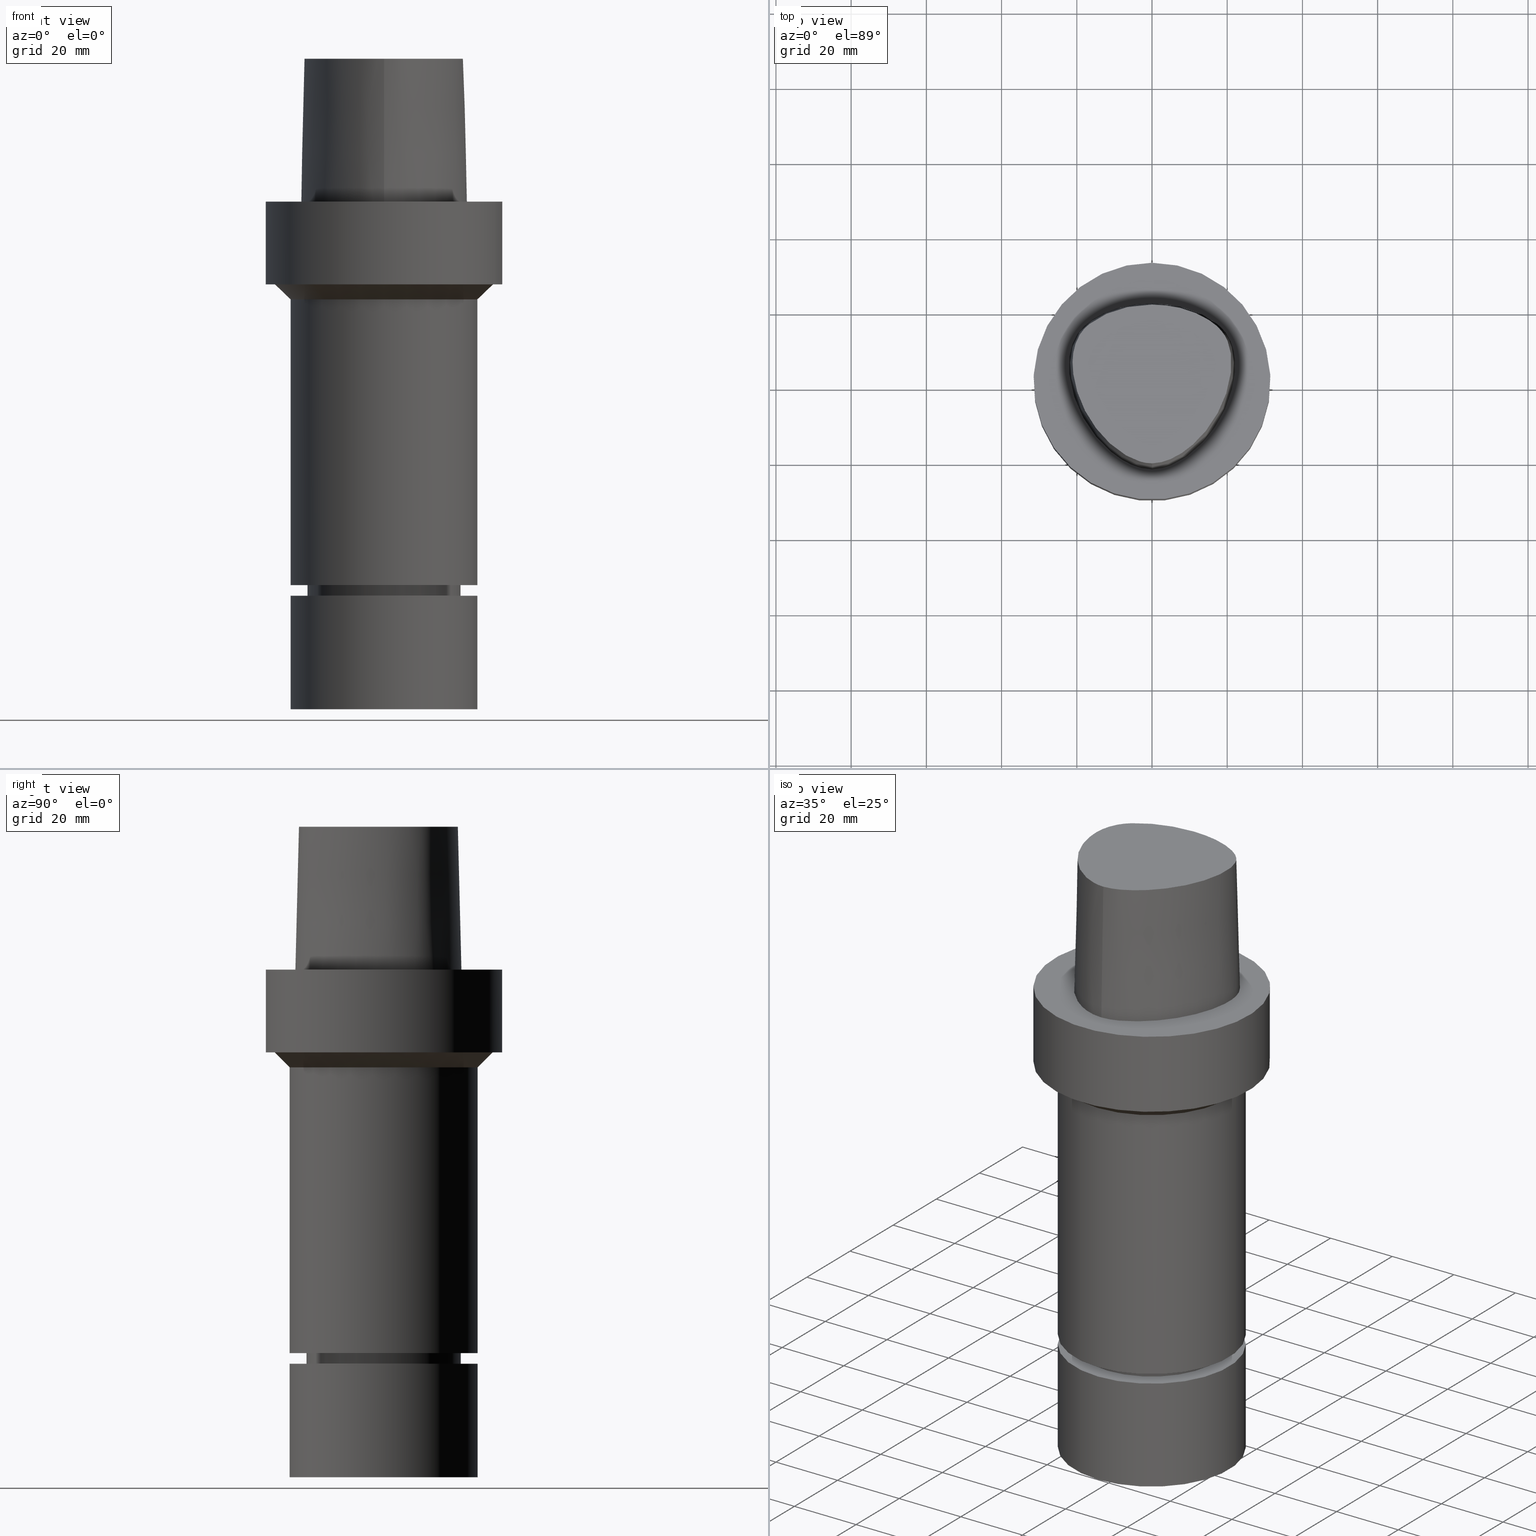
[diagram: canonical four-view strip — front | top / right | iso, engineering-drawing reading convention]
A machine part, canonical four-view strip (front | top / right | iso — engineering-drawing reading convention). The complete STEP part file that produces these views, byte-faithful:
ISO-10303-21;
HEADER;
FILE_DESCRIPTION((''),'1');
FILE_NAME('V:/90_\X2\53D65F9730C730FC30BF\X0\/00_\X2\6DE18DEF30C730FC30BF\X0\/ALL/CAPTO-BKUS\X2\52A05DE556F3\X0\_201801/C6-MEGAER/C6-MEGAER32-135NL.stp','2018-02-01T08:57:54',(''),(''),'Spatial Interop R21 SP3','Kubotek KeyCreator 2011 V10.0.2 (22737)',' ');
FILE_SCHEMA(('automotive_design'));
ENDSEC;
DATA;
#1=MECHANICAL_DESIGN_GEOMETRIC_PRESENTATION_REPRESENTATION(' ',(#14,#15,#16,#17,#18,#19,#20,#21,#22,#23,#24,#25,#26,#27,#28,#29,#30,#31,#32,#33,#34,#35,#36,#37,#38,#39,#40,#41,#42,#43,#44,#45,#46,#47,#48,#49,#50,#51,#52,#53),#10);
#2=PRODUCT_DEFINITION_CONTEXT('',#54,'design');
#3=APPLICATION_PROTOCOL_DEFINITION('INTERNATIONAL STANDARD','automotive_design',1994,#54);
#4=PRODUCT_CATEGORY_RELATIONSHIP('NONE','NONE',#55,#56);
#5=SHAPE_DEFINITION_REPRESENTATION(#57,#58);
#6=PRODUCT_DEFINITION_CONTEXT('',#59,'design');
#7=APPLICATION_PROTOCOL_DEFINITION('INTERNATIONAL STANDARD','automotive_design',1994,#59);
#8=PRODUCT_CATEGORY_RELATIONSHIP('NONE','NONE',#60,#61);
#9=SHAPE_DEFINITION_REPRESENTATION(#62,#63);
#10= (GEOMETRIC_REPRESENTATION_CONTEXT(3)GLOBAL_UNCERTAINTY_ASSIGNED_CONTEXT((#66))GLOBAL_UNIT_ASSIGNED_CONTEXT((#68,#69,#70))REPRESENTATION_CONTEXT('NONE','WORKSPACE'));
#14=STYLED_ITEM('',(#72),#73);
#15=STYLED_ITEM('',(#74),#75);
#16=STYLED_ITEM('',(#76,#77),#78);
#17=STYLED_ITEM('',(#79),#80);
#18=STYLED_ITEM('',(#81),#82);
#19=STYLED_ITEM('',(#83),#84);
#20=STYLED_ITEM('',(#85,#86),#87);
#21=STYLED_ITEM('',(#88,#89),#90);
#22=STYLED_ITEM('',(#91,#92),#93);
#23=STYLED_ITEM('',(#94,#95),#96);
#24=STYLED_ITEM('',(#97),#98);
#25=STYLED_ITEM('',(#99,#100),#101);
#26=STYLED_ITEM('',(#102),#103);
#27=STYLED_ITEM('',(#104,#105),#106);
#28=STYLED_ITEM('',(#107),#108);
#29=STYLED_ITEM('',(#109),#110);
#30=STYLED_ITEM('',(#111),#112);
#31=STYLED_ITEM('',(#113,#114),#115);
#32=STYLED_ITEM('',(#116),#117);
#33=STYLED_ITEM('',(#118,#119),#120);
#34=STYLED_ITEM('',(#121,#122),#123);
#35=STYLED_ITEM('',(#124),#125);
#36=STYLED_ITEM('',(#126),#127);
#37=STYLED_ITEM('',(#128),#129);
#38=STYLED_ITEM('',(#130,#131),#132);
#39=STYLED_ITEM('',(#133),#134);
#40=STYLED_ITEM('',(#135,#136),#137);
#41=STYLED_ITEM('',(#138,#139),#140);
#42=STYLED_ITEM('',(#141,#142),#143);
#43=STYLED_ITEM('',(#144),#145);
#44=STYLED_ITEM('',(#146),#147);
#45=STYLED_ITEM('',(#148,#149),#150);
#46=STYLED_ITEM('',(#151,#152),#153);
#47=STYLED_ITEM('',(#154),#155);
#48=STYLED_ITEM('',(#156),#157);
#49=STYLED_ITEM('',(#158),#159);
#50=STYLED_ITEM('',(#160,#161),#162);
#51=STYLED_ITEM('',(#163,#164),#165);
#52=STYLED_ITEM('',(#166,#167),#168);
#53=STYLED_ITEM('',(#169,#170),#171);
#54=APPLICATION_CONTEXT(' ');
#55=PRODUCT_CATEGORY('part','NONE');
#56=PRODUCT_RELATED_PRODUCT_CATEGORY('detail',' ',(#172));
#57=PRODUCT_DEFINITION_SHAPE('NONE','NONE',#173);
#58=ADVANCED_BREP_SHAPE_REPRESENTATION('Unnamed[1]',(#150,#174),#10);
#59=APPLICATION_CONTEXT(' ');
#60=PRODUCT_CATEGORY('part','NONE');
#61=PRODUCT_RELATED_PRODUCT_CATEGORY('detail',' ',(#175));
#62=PRODUCT_DEFINITION_SHAPE('NONE','NONE',#176);
#63=ADVANCED_BREP_SHAPE_REPRESENTATION('Unnamed[1]',(#168,#177),#10);
#66=UNCERTAINTY_MEASURE_WITH_UNIT(LENGTH_MEASURE(1.0E-006),#68,'','');
#68= (CONVERSION_BASED_UNIT('MILLIMETRE',#180)LENGTH_UNIT()NAMED_UNIT(#183));
#69= (NAMED_UNIT(#185)PLANE_ANGLE_UNIT()SI_UNIT($,.RADIAN.));
#70= (NAMED_UNIT(#185)SOLID_ANGLE_UNIT()SI_UNIT($,.STERADIAN.));
#72=PRESENTATION_STYLE_ASSIGNMENT((#191));
#73=EDGE_CURVE('Unnamed[1]',#192,#192,#193,.T.);
#74=PRESENTATION_STYLE_ASSIGNMENT((#194));
#75=EDGE_CURVE('Unnamed[1]',#195,#196,#197,.T.);
#76=PRESENTATION_STYLE_ASSIGNMENT((#198));
#77=PRESENTATION_STYLE_ASSIGNMENT((#199));
#78=ADVANCED_FACE('Unnamed[1]',(#200,#201),#202,.T.);
#79=PRESENTATION_STYLE_ASSIGNMENT((#203));
#80=EDGE_CURVE('Unnamed[1]',#204,#205,#206,.T.);
#81=PRESENTATION_STYLE_ASSIGNMENT((#207));
#82=EDGE_CURVE('Unnamed[1]',#208,#208,#209,.T.);
#83=PRESENTATION_STYLE_ASSIGNMENT((#210));
#84=EDGE_CURVE('Unnamed[1]',#211,#211,#212,.T.);
#85=PRESENTATION_STYLE_ASSIGNMENT((#213));
#86=PRESENTATION_STYLE_ASSIGNMENT((#214));
#87=ADVANCED_FACE('Unnamed[1]',(#215,#216),#217,.T.);
#88=PRESENTATION_STYLE_ASSIGNMENT((#218));
#89=PRESENTATION_STYLE_ASSIGNMENT((#219));
#90=ADVANCED_FACE('Unnamed[1]',(#220,#221),#222,.T.);
#91=PRESENTATION_STYLE_ASSIGNMENT((#223));
#92=PRESENTATION_STYLE_ASSIGNMENT((#224));
#93=ADVANCED_FACE('Unnamed[1]',(#225),#226,.T.);
#94=PRESENTATION_STYLE_ASSIGNMENT((#227));
#95=PRESENTATION_STYLE_ASSIGNMENT((#228));
#96=ADVANCED_FACE('Unnamed[1]',(#229),#230,.T.);
#97=PRESENTATION_STYLE_ASSIGNMENT((#231));
#98=EDGE_CURVE('Unnamed[1]',#232,#232,#233,.T.);
#99=PRESENTATION_STYLE_ASSIGNMENT((#234));
#100=PRESENTATION_STYLE_ASSIGNMENT((#235));
#101=ADVANCED_FACE('Unnamed[1]',(#236,#237),#238,.T.);
#102=PRESENTATION_STYLE_ASSIGNMENT((#239));
#103=EDGE_CURVE('Unnamed[1]',#240,#204,#241,.T.);
#104=PRESENTATION_STYLE_ASSIGNMENT((#242));
#105=PRESENTATION_STYLE_ASSIGNMENT((#243));
#106=ADVANCED_FACE('Unnamed[1]',(#244,#245),#246,.T.);
#107=PRESENTATION_STYLE_ASSIGNMENT((#247));
#108=EDGE_CURVE('Unnamed[1]',#248,#248,#249,.T.);
#109=PRESENTATION_STYLE_ASSIGNMENT((#250));
#110=EDGE_CURVE('Unnamed[1]',#251,#251,#252,.T.);
#111=PRESENTATION_STYLE_ASSIGNMENT((#253));
#112=EDGE_CURVE('Unnamed[1]',#254,#254,#255,.T.);
#113=PRESENTATION_STYLE_ASSIGNMENT((#256));
#114=PRESENTATION_STYLE_ASSIGNMENT((#257));
#115=ADVANCED_FACE('Unnamed[1]',(#258,#259),#260,.T.);
#116=PRESENTATION_STYLE_ASSIGNMENT((#261));
#117=EDGE_CURVE('Unnamed[1]',#262,#262,#263,.T.);
#118=PRESENTATION_STYLE_ASSIGNMENT((#264));
#119=PRESENTATION_STYLE_ASSIGNMENT((#265));
#120=ADVANCED_FACE('Unnamed[1]',(#266),#267,.T.);
#121=PRESENTATION_STYLE_ASSIGNMENT((#268));
#122=PRESENTATION_STYLE_ASSIGNMENT((#269));
#123=ADVANCED_FACE('Unnamed[1]',(#270,#271),#272,.T.);
#124=PRESENTATION_STYLE_ASSIGNMENT((#273));
#125=EDGE_CURVE('Unnamed[1]',#204,#240,#274,.T.);
#126=PRESENTATION_STYLE_ASSIGNMENT((#275));
#127=EDGE_CURVE('Unnamed[1]',#196,#205,#276,.T.);
#128=PRESENTATION_STYLE_ASSIGNMENT((#277));
#129=EDGE_CURVE('Unnamed[1]',#240,#195,#278,.T.);
#130=PRESENTATION_STYLE_ASSIGNMENT((#279));
#131=PRESENTATION_STYLE_ASSIGNMENT((#280));
#132=ADVANCED_FACE('Unnamed[1]',(#281,#282),#283,.T.);
#133=PRESENTATION_STYLE_ASSIGNMENT((#284));
#134=EDGE_CURVE('Unnamed[1]',#285,#285,#286,.T.);
#135=PRESENTATION_STYLE_ASSIGNMENT((#287));
#136=PRESENTATION_STYLE_ASSIGNMENT((#288));
#137=ADVANCED_FACE('Unnamed[1]',(#289),#290,.T.);
#138=PRESENTATION_STYLE_ASSIGNMENT((#291));
#139=PRESENTATION_STYLE_ASSIGNMENT((#292));
#140=ADVANCED_FACE('Unnamed[1]',(#293,#294),#295,.T.);
#141=PRESENTATION_STYLE_ASSIGNMENT((#296));
#142=PRESENTATION_STYLE_ASSIGNMENT((#297));
#143=ADVANCED_FACE('Unnamed[1]',(#298,#299),#300,.T.);
#144=PRESENTATION_STYLE_ASSIGNMENT((#301));
#145=EDGE_CURVE('Unnamed[1]',#302,#302,#303,.T.);
#146=PRESENTATION_STYLE_ASSIGNMENT((#304));
#147=EDGE_CURVE('Unnamed[1]',#305,#305,#306,.T.);
#148=PRESENTATION_STYLE_ASSIGNMENT((#307));
#149=PRESENTATION_STYLE_ASSIGNMENT((#308));
#150=MANIFOLD_SOLID_BREP('Unnamed[1]',#309);
#151=PRESENTATION_STYLE_ASSIGNMENT((#310));
#152=PRESENTATION_STYLE_ASSIGNMENT((#311));
#153=ADVANCED_FACE('Unnamed[1]',(#312),#313,.T.);
#154=PRESENTATION_STYLE_ASSIGNMENT((#314));
#155=EDGE_CURVE('Unnamed[1]',#240,#196,#315,.T.);
#156=PRESENTATION_STYLE_ASSIGNMENT((#316));
#157=EDGE_CURVE('Unnamed[1]',#205,#195,#317,.T.);
#158=PRESENTATION_STYLE_ASSIGNMENT((#318));
#159=EDGE_CURVE('Unnamed[1]',#319,#319,#320,.T.);
#160=PRESENTATION_STYLE_ASSIGNMENT((#321));
#161=PRESENTATION_STYLE_ASSIGNMENT((#322));
#162=ADVANCED_FACE('Unnamed[1]',(#323),#324,.T.);
#163=PRESENTATION_STYLE_ASSIGNMENT((#325));
#164=PRESENTATION_STYLE_ASSIGNMENT((#326));
#165=ADVANCED_FACE('Unnamed[1]',(#327,#328),#329,.T.);
#166=PRESENTATION_STYLE_ASSIGNMENT((#330));
#167=PRESENTATION_STYLE_ASSIGNMENT((#331));
#168=MANIFOLD_SOLID_BREP('Unnamed[1]',#332);
#169=PRESENTATION_STYLE_ASSIGNMENT((#333));
#170=PRESENTATION_STYLE_ASSIGNMENT((#334));
#171=ADVANCED_FACE('Unnamed[1]',(#335),#336,.T.);
#172=PRODUCT('Unnamed[1]','Unnamed[1]','PART-Unnamed[1]-DESC',(#337));
#173=PRODUCT_DEFINITION('NONE','NONE',#338,#2);
#174=AXIS2_PLACEMENT_3D('',#339,#340,#341);
#175=PRODUCT('Unnamed[1]','Unnamed[1]','PART-Unnamed[1]-DESC',(#342));
#176=PRODUCT_DEFINITION('NONE','NONE',#343,#6);
#177=AXIS2_PLACEMENT_3D('',#344,#345,#346);
#180=LENGTH_MEASURE_WITH_UNIT(LENGTH_MEASURE(1.0),#347);
#183=DIMENSIONAL_EXPONENTS(1.0,0.0,0.0,0.0,0.0,0.0,0.0);
#185=DIMENSIONAL_EXPONENTS(0.0,0.0,0.0,0.0,0.0,0.0,0.0);
#191=CURVE_STYLE('',#348,POSITIVE_LENGTH_MEASURE(1000.0),#349);
#192=VERTEX_POINT('',#350);
#193=CIRCLE('',#351,18.8999999999997);
#194=CURVE_STYLE('',#352,POSITIVE_LENGTH_MEASURE(1000.0),#353);
#195=VERTEX_POINT('',#354);
#196=VERTEX_POINT('',#355);
#197=CIRCLE('',#356,0.949936168436318);
#198=SURFACE_STYLE_USAGE(.BOTH.,#357);
#199=CURVE_STYLE('',#358,POSITIVE_LENGTH_MEASURE(1000.0),#359);
#200=FACE_BOUND('',#360,.T.);
#201=FACE_BOUND('',#361,.T.);
#202=CYLINDRICAL_SURFACE('',#362,20.4999999999961);
#203=CURVE_STYLE('',#363,POSITIVE_LENGTH_MEASURE(1000.0),#364);
#204=VERTEX_POINT('',#365);
#205=VERTEX_POINT('',#366);
#206=LINE('',#367,#368);
#207=CURVE_STYLE('',#369,POSITIVE_LENGTH_MEASURE(1000.0),#370);
#208=VERTEX_POINT('',#371);
#209=CIRCLE('',#372,20.4999999999911);
#210=CURVE_STYLE('',#373,POSITIVE_LENGTH_MEASURE(1000.0),#374);
#211=VERTEX_POINT('',#375);
#212=CIRCLE('',#376,31.5);
#213=SURFACE_STYLE_USAGE(.BOTH.,#377);
#214=CURVE_STYLE('',#378,POSITIVE_LENGTH_MEASURE(1000.0),#379);
#215=FACE_BOUND('',#380,.T.);
#216=FACE_BOUND('',#381,.T.);
#217=CYLINDRICAL_SURFACE('',#382,20.0);
#218=SURFACE_STYLE_USAGE(.BOTH.,#383);
#219=CURVE_STYLE('',#384,POSITIVE_LENGTH_MEASURE(1000.0),#385);
#220=FACE_BOUND('',#386,.T.);
#221=FACE_BOUND('',#387,.T.);
#222=CONICAL_SURFACE('',#388,19.4499999999999,0.523598775598226);
#223=SURFACE_STYLE_USAGE(.BOTH.,#389);
#224=CURVE_STYLE('',#390,POSITIVE_LENGTH_MEASURE(1000.0),#391);
#225=FACE_OUTER_BOUND('',#392,.T.);
#226=PLANE('',#393);
#227=SURFACE_STYLE_USAGE(.BOTH.,#394);
#228=CURVE_STYLE('',#395,POSITIVE_LENGTH_MEASURE(1000.0),#396);
#229=FACE_OUTER_BOUND('',#397,.T.);
#230=PLANE('',#398);
#231=CURVE_STYLE('',#399,POSITIVE_LENGTH_MEASURE(1000.0),#400);
#232=VERTEX_POINT('',#401);
#233=CIRCLE('',#402,25.0);
#234=SURFACE_STYLE_USAGE(.BOTH.,#403);
#235=CURVE_STYLE('',#404,POSITIVE_LENGTH_MEASURE(1000.0),#405);
#236=FACE_BOUND('',#406,.T.);
#237=FACE_OUTER_BOUND('',#407,.T.);
#238=PLANE('',#408);
#239=CURVE_STYLE('',#409,POSITIVE_LENGTH_MEASURE(1000.0),#410);
#240=VERTEX_POINT('',#411);
#241=B_SPLINE_CURVE_WITH_KNOTS('',3,(#412,#413,#414,#415,#416,#417,#418,#419,#420,#421,#422,#423,#424,#425,#426,#427),.UNSPECIFIED.,.F.,.F.,(4,1,1,1,1,1,1,1,1,1,1,1,1,4),(0.0,0.447924670568964,0.9388024242536,1.50591409090711,2.07314340012323,2.72424957442464,3.2253501842849,3.80982102049476,4.34867996267067,4.85900173381144,5.37972031856977,6.03459825488646,6.61113557741484,6.61513393087395),.UNSPECIFIED.);
#242=SURFACE_STYLE_USAGE(.BOTH.,#428);
#243=CURVE_STYLE('',#429,POSITIVE_LENGTH_MEASURE(1000.0),#430);
#244=FACE_BOUND('',#431,.T.);
#245=FACE_BOUND('',#432,.T.);
#246=CONICAL_SURFACE('',#433,20.2500000000006,1.04719755120258);
#247=CURVE_STYLE('',#434,POSITIVE_LENGTH_MEASURE(1000.0),#435);
#248=VERTEX_POINT('',#436);
#249=CIRCLE('',#437,25.0);
#250=CURVE_STYLE('',#438,POSITIVE_LENGTH_MEASURE(1000.0),#439);
#251=VERTEX_POINT('',#440);
#252=CIRCLE('',#441,24.9999999999997);
#253=CURVE_STYLE('',#442,POSITIVE_LENGTH_MEASURE(1000.0),#443);
#254=VERTEX_POINT('',#444);
#255=CIRCLE('',#445,25.0);
#256=SURFACE_STYLE_USAGE(.BOTH.,#446);
#257=CURVE_STYLE('',#447,POSITIVE_LENGTH_MEASURE(1000.0),#448);
#258=FACE_BOUND('',#449,.T.);
#259=FACE_BOUND('',#450,.T.);
#260=CYLINDRICAL_SURFACE('',#451,25.0);
#261=CURVE_STYLE('',#452,POSITIVE_LENGTH_MEASURE(1000.0),#453);
#262=VERTEX_POINT('',#454);
#263=CIRCLE('',#455,28.9999999999997);
#264=SURFACE_STYLE_USAGE(.BOTH.,#456);
#265=CURVE_STYLE('',#457,POSITIVE_LENGTH_MEASURE(1000.0),#458);
#266=FACE_OUTER_BOUND('',#459,.T.);
#267=B_SPLINE_SURFACE_WITH_KNOTS('',3,3,((#460,#461,#462,#463),(#464,#465,#466,#467),(#468,#469,#470,#471),(#472,#473,#474,#475),(#476,#477,#478,#479),(#480,#481,#482,#483),(#484,#485,#486,#487),(#488,#489,#490,#491),(#492,#493,#494,#495),(#496,#497,#498,#499),(#500,#501,#502,#503),(#504,#505,#506,#507),(#508,#509,#510,#511),(#512,#513,#514,#515),(#516,#517,#518,#519),(#520,#521,#522,#523),(#524,#525,#526,#527),(#528,#529,#530,#531)),.UNSPECIFIED.,.F.,.F.,.F.,(4,1,1,1,1,1,1,1,1,2,1,1,1,1,4),(4,4),(-6.6151339308743,-6.20168806019465,-5.78824218951501,-5.37479631883537,-4.96135044815572,-4.13445870679644,-3.30756696543715,-2.89412109475751,-2.48067522407786,-2.06722935339822,-1.65378348271857,-1.24033761203893,-0.826891741359287,-0.413445870679644,0.0),(-3.8,0.0),.UNSPECIFIED.);
#268=SURFACE_STYLE_USAGE(.BOTH.,#532);
#269=CURVE_STYLE('',#533,POSITIVE_LENGTH_MEASURE(1000.0),#534);
#270=FACE_BOUND('',#535,.T.);
#271=FACE_BOUND('',#536,.T.);
#272=CYLINDRICAL_SURFACE('',#537,31.5);
#273=CURVE_STYLE('',#538,POSITIVE_LENGTH_MEASURE(1000.0),#539);
#274=B_SPLINE_CURVE_WITH_KNOTS('',3,(#540,#541,#542,#543,#544,#545,#546,#547,#548,#549,#550,#551,#552,#553,#554,#555),.UNSPECIFIED.,.F.,.F.,(4,1,1,1,1,1,1,1,1,1,1,1,1,4),(6.61513393087476,6.99917207152274,7.48193246986995,7.96289324787093,8.45540287038584,9.10291653679981,9.67129810936083,10.1618749681153,10.6358867802489,11.1080734988593,11.6043706019633,12.09451993853,12.6985979284494,13.2302678617486),.UNSPECIFIED.);
#275=CURVE_STYLE('',#556,POSITIVE_LENGTH_MEASURE(1000.0),#557);
#276=B_SPLINE_CURVE_WITH_KNOTS('',3,(#558,#559,#560,#561,#562,#563,#564,#565,#566,#567,#568,#569,#570,#571,#572,#573,#574),.UNSPECIFIED.,.F.,.F.,(4,1,1,1,1,1,1,1,1,1,1,1,1,1,4),(-13.2302678617486,-12.816821991069,-12.4033761203893,-11.9899302497097,-11.57648437903,-11.1630385083504,-10.9563155730106,-10.7495926376707,-10.3361467669911,-9.92270089631145,-9.09580915495216,-8.26891741359287,-7.44202567223358,-7.02857980155394,-6.6151339308743),.UNSPECIFIED.);
#277=CURVE_STYLE('',#575,POSITIVE_LENGTH_MEASURE(1000.0),#576);
#278=LINE('',#577,#578);
#279=SURFACE_STYLE_USAGE(.BOTH.,#579);
#280=CURVE_STYLE('',#580,POSITIVE_LENGTH_MEASURE(1000.0),#581);
#281=FACE_BOUND('',#582,.T.);
#282=FACE_BOUND('',#583,.T.);
#283=CONICAL_SURFACE('',#584,26.9999999999997,0.785398163397449);
#284=CURVE_STYLE('',#585,POSITIVE_LENGTH_MEASURE(1000.0),#586);
#285=VERTEX_POINT('',#587);
#286=CIRCLE('',#588,31.5);
#287=SURFACE_STYLE_USAGE(.BOTH.,#589);
#288=CURVE_STYLE('',#590,POSITIVE_LENGTH_MEASURE(1000.0),#591);
#289=FACE_OUTER_BOUND('',#592,.T.);
#290=CONICAL_SURFACE('',#593,1.0,0.0249931148600041);
#291=SURFACE_STYLE_USAGE(.BOTH.,#594);
#292=CURVE_STYLE('',#595,POSITIVE_LENGTH_MEASURE(1000.0),#596);
#293=FACE_BOUND('',#597,.T.);
#294=FACE_OUTER_BOUND('',#598,.T.);
#295=PLANE('',#599);
#296=SURFACE_STYLE_USAGE(.BOTH.,#600);
#297=CURVE_STYLE('',#601,POSITIVE_LENGTH_MEASURE(1000.0),#602);
#298=FACE_BOUND('',#603,.T.);
#299=FACE_BOUND('',#604,.T.);
#300=CYLINDRICAL_SURFACE('',#605,24.9999999999999);
#301=CURVE_STYLE('',#606,POSITIVE_LENGTH_MEASURE(1000.0),#607);
#302=VERTEX_POINT('',#608);
#303=CIRCLE('',#609,20.5000000000012);
#304=CURVE_STYLE('',#610,POSITIVE_LENGTH_MEASURE(1000.0),#611);
#305=VERTEX_POINT('',#612);
#306=CIRCLE('',#613,20.0000000000001);
#307=SURFACE_STYLE_USAGE(.BOTH.,#614);
#308=CURVE_STYLE('',#615,POSITIVE_LENGTH_MEASURE(1000.0),#616);
#309=CLOSED_SHELL('',(#153,#120,#137,#171,#140,#123,#165,#132,#143,#101,#78,#106,#87,#90,#93));
#310=SURFACE_STYLE_USAGE(.BOTH.,#617);
#311=CURVE_STYLE('',#618,POSITIVE_LENGTH_MEASURE(1000.0),#619);
#312=FACE_OUTER_BOUND('',#620,.T.);
#313=B_SPLINE_SURFACE_WITH_KNOTS('',3,3,((#621,#622,#623,#624),(#625,#626,#627,#628),(#629,#630,#631,#632),(#633,#634,#635,#636),(#637,#638,#639,#640),(#641,#642,#643,#644),(#645,#646,#647,#648),(#649,#650,#651,#652),(#653,#654,#655,#656),(#657,#658,#659,#660),(#661,#662,#663,#664),(#665,#666,#667,#668),(#669,#670,#671,#672),(#673,#674,#675,#676),(#677,#678,#679,#680),(#681,#682,#683,#684),(#685,#686,#687,#688)),.UNSPECIFIED.,.F.,.F.,.F.,(4,1,1,1,1,1,1,1,1,1,1,1,1,1,4),(4,4),(-13.2302678617486,-12.816821991069,-12.4033761203893,-11.9899302497097,-11.57648437903,-11.1630385083504,-10.9563155730106,-10.7495926376707,-10.3361467669911,-9.92270089631145,-9.09580915495216,-8.26891741359287,-7.44202567223358,-7.02857980155394,-6.6151339308743),(-3.8,0.0),.UNSPECIFIED.);
#314=CURVE_STYLE('',#689,POSITIVE_LENGTH_MEASURE(1000.0),#690);
#315=LINE('',#691,#692);
#316=CURVE_STYLE('',#693,POSITIVE_LENGTH_MEASURE(1000.0),#694);
#317=B_SPLINE_CURVE_WITH_KNOTS('',3,(#695,#696,#697,#698,#699,#700,#701,#702,#703,#704,#705,#706,#707,#708,#709,#710,#711,#712),.UNSPECIFIED.,.F.,.F.,(4,1,1,1,1,1,1,1,1,2,1,1,1,1,4),(-6.6151339308743,-6.20168806019465,-5.78824218951501,-5.37479631883537,-4.96135044815572,-4.13445870679644,-3.30756696543715,-2.89412109475751,-2.48067522407786,-2.06722935339822,-1.65378348271857,-1.24033761203893,-0.826891741359287,-0.413445870679644,0.0),.UNSPECIFIED.);
#318=CURVE_STYLE('',#713,POSITIVE_LENGTH_MEASURE(1000.0),#714);
#319=VERTEX_POINT('',#715);
#320=CIRCLE('',#716,20.0);
#321=SURFACE_STYLE_USAGE(.BOTH.,#717);
#322=CURVE_STYLE('',#718,POSITIVE_LENGTH_MEASURE(1000.0),#719);
#323=FACE_OUTER_BOUND('',#720,.T.);
#324=PLANE('',#721);
#325=SURFACE_STYLE_USAGE(.BOTH.,#722);
#326=CURVE_STYLE('',#723,POSITIVE_LENGTH_MEASURE(1000.0),#724);
#327=FACE_BOUND('',#725,.T.);
#328=FACE_OUTER_BOUND('',#726,.T.);
#329=PLANE('',#727);
#330=SURFACE_STYLE_USAGE(.BOTH.,#728);
#331=CURVE_STYLE('',#729,POSITIVE_LENGTH_MEASURE(1000.0),#730);
#332=CLOSED_SHELL('',(#162,#96,#115));
#333=SURFACE_STYLE_USAGE(.BOTH.,#731);
#334=CURVE_STYLE('',#732,POSITIVE_LENGTH_MEASURE(1000.0),#733);
#335=FACE_OUTER_BOUND('',#734,.T.);
#336=PLANE('',#735);
#337=PRODUCT_CONTEXT('',#54,'mechanical');
#338=PRODUCT_DEFINITION_FORMATION_WITH_SPECIFIED_SOURCE(' ','NONE',#172,.NOT_KNOWN.);
#339=CARTESIAN_POINT('',(0.0,0.0,0.0));
#340=DIRECTION('',(0.0,0.0,1.0));
#341=DIRECTION('',(1.0,0.0,0.0));
#342=PRODUCT_CONTEXT('',#59,'mechanical');
#343=PRODUCT_DEFINITION_FORMATION_WITH_SPECIFIED_SOURCE(' ','NONE',#175,.NOT_KNOWN.);
#344=CARTESIAN_POINT('',(0.0,0.0,0.0));
#345=DIRECTION('',(0.0,0.0,1.0));
#346=DIRECTION('',(1.0,0.0,0.0));
#347= (NAMED_UNIT(#183)LENGTH_UNIT()SI_UNIT(.MILLI.,.METRE.));
#348=DRAUGHTING_PRE_DEFINED_CURVE_FONT('continuous');
#349=COLOUR_RGB('',0.0,1.0,0.0);
#350=CARTESIAN_POINT('',(7.5928101547136E-015,18.8999999999997,-124.0));
#351=AXIS2_PLACEMENT_3D('',#737,#738,#739);
#352=DRAUGHTING_PRE_DEFINED_CURVE_FONT('continuous');
#353=COLOUR_RGB('',0.0,1.0,0.0);
#354=CARTESIAN_POINT('',(-0.045171994691285,20.6766009553285,1.6755590516169E-031));
#355=CARTESIAN_POINT('',(0.044682985379347,20.6765087343109,1.61778115328528E-031));
#356=AXIS2_PLACEMENT_3D('',#740,#741,#742);
#357=SURFACE_SIDE_STYLE('',(#743));
#358=DRAUGHTING_PRE_DEFINED_CURVE_FONT('continuous');
#359=COLOUR_RGB('',0.0,1.0,0.0);
#360=EDGE_LOOP('',(#744));
#361=EDGE_LOOP('',(#745));
#362=AXIS2_PLACEMENT_3D('',#746,#747,#748);
#363=DRAUGHTING_PRE_DEFINED_CURVE_FONT('continuous');
#364=COLOUR_RGB('',0.0,1.0,0.0);
#365=CARTESIAN_POINT('',(0.038736923393866,-22.5191997536361,38.0));
#366=CARTESIAN_POINT('',(0.04359356758149,-23.4691235068931,7.78075697532443E-032));
#367=CARTESIAN_POINT('',(0.038736923393866,-22.5191997536361,38.0));
#368=VECTOR('',#749,38.0118715498723);
#369=DRAUGHTING_PRE_DEFINED_CURVE_FONT('continuous');
#370=COLOUR_RGB('',0.0,1.0,0.0);
#371=CARTESIAN_POINT('',(6.24570832399483E-015,20.4999999999911,-102.000157569404));
#372=AXIS2_PLACEMENT_3D('',#750,#751,#752);
#373=DRAUGHTING_PRE_DEFINED_CURVE_FONT('continuous');
#374=COLOUR_RGB('',0.0,1.0,0.0);
#375=CARTESIAN_POINT('',(-3.88267476788467E-031,31.5,3.85763741731416E-015));
#376=AXIS2_PLACEMENT_3D('',#753,#754,#755);
#377=SURFACE_SIDE_STYLE('',(#756));
#378=DRAUGHTING_PRE_DEFINED_CURVE_FONT('continuous');
#379=COLOUR_RGB('',0.0,1.0,0.0);
#380=EDGE_LOOP('',(#757));
#381=EDGE_LOOP('',(#758));
#382=AXIS2_PLACEMENT_3D('',#759,#760,#761);
#383=SURFACE_SIDE_STYLE('',(#762));
#384=DRAUGHTING_PRE_DEFINED_CURVE_FONT('continuous');
#385=COLOUR_RGB('',0.0,1.0,0.0);
#386=EDGE_LOOP('',(#763));
#387=EDGE_LOOP('',(#764));
#388=AXIS2_PLACEMENT_3D('',#765,#766,#767);
#389=SURFACE_SIDE_STYLE('',(#768));
#390=DRAUGHTING_PRE_DEFINED_CURVE_FONT('continuous');
#391=COLOUR_RGB('',0.0,1.0,0.0);
#392=EDGE_LOOP('',(#769));
#393=AXIS2_PLACEMENT_3D('',#770,#771,#772);
#394=SURFACE_SIDE_STYLE('',(#773));
#395=DRAUGHTING_PRE_DEFINED_CURVE_FONT('continuous');
#396=COLOUR_RGB('',0.0,1.0,0.0);
#397=EDGE_LOOP('',(#774));
#398=AXIS2_PLACEMENT_3D('',#775,#776,#777);
#399=DRAUGHTING_PRE_DEFINED_CURVE_FONT('continuous');
#400=COLOUR_RGB('',0.0,1.0,0.0);
#401=CARTESIAN_POINT('',(8.26636589424463E-015,25.0,-135.0));
#402=AXIS2_PLACEMENT_3D('',#778,#779,#780);
#403=SURFACE_SIDE_STYLE('',(#781));
#404=DRAUGHTING_PRE_DEFINED_CURVE_FONT('continuous');
#405=COLOUR_RGB('',0.0,1.0,0.0);
#406=EDGE_LOOP('',(#782));
#407=EDGE_LOOP('',(#783));
#408=AXIS2_PLACEMENT_3D('',#784,#785,#786);
#409=DRAUGHTING_PRE_DEFINED_CURVE_FONT('continuous');
#410=COLOUR_RGB('',0.0,1.0,0.0);
#411=CARTESIAN_POINT('',(-0.001218547003662,19.7276821925089,38.0));
#412=CARTESIAN_POINT('',(-0.001218547003662,19.7276821925089,38.0));
#413=CARTESIAN_POINT('',(-1.49408492138443,19.6585333605309,38.0));
#414=CARTESIAN_POINT('',(-4.62297391420352,19.513604770166,38.0));
#415=CARTESIAN_POINT('',(-9.56160616752212,18.4291575730197,38.0));
#416=CARTESIAN_POINT('',(-14.5427684976927,16.2697452580488,38.0));
#417=CARTESIAN_POINT('',(-19.4315563551602,12.5302108980807,38.0));
#418=CARTESIAN_POINT('',(-21.306358833612,6.76352894547076,38.0));
#419=CARTESIAN_POINT('',(-21.0724946936277,0.957075236984038,38.0));
#420=CARTESIAN_POINT('',(-19.7876470880144,-4.34628503581652,38.0));
#421=CARTESIAN_POINT('',(-17.5396999600095,-9.33314444653089,38.0));
#422=CARTESIAN_POINT('',(-14.645447733857,-13.7185760345629,38.0));
#423=CARTESIAN_POINT('',(-10.7996726536643,-17.856257282137,38.0));
#424=CARTESIAN_POINT('',(-6.00479510196376,-21.2687382067675,38.0));
#425=CARTESIAN_POINT('',(-1.90747171908525,-22.5250621415864,38.0));
#426=CARTESIAN_POINT('',(0.025424107066464,-22.5192678176378,38.0));
#427=CARTESIAN_POINT('',(0.038736923394311,-22.519199753636,38.0));
#428=SURFACE_SIDE_STYLE('',(#787));
#429=DRAUGHTING_PRE_DEFINED_CURVE_FONT('continuous');
#430=COLOUR_RGB('',0.0,1.0,0.0);
#431=EDGE_LOOP('',(#788));
#432=EDGE_LOOP('',(#789));
#433=AXIS2_PLACEMENT_3D('',#790,#791,#792);
#434=DRAUGHTING_PRE_DEFINED_CURVE_FONT('continuous');
#435=COLOUR_RGB('',0.0,1.0,0.0);
#436=CARTESIAN_POINT('',(6.41714922753213E-015,25.0,-104.8));
#437=AXIS2_PLACEMENT_3D('',#793,#794,#795);
#438=DRAUGHTING_PRE_DEFINED_CURVE_FONT('continuous');
#439=COLOUR_RGB('',0.0,1.0,0.0);
#440=CARTESIAN_POINT('',(1.59204083889159E-015,24.9999999999997,-26.0000000000006));
#441=AXIS2_PLACEMENT_3D('',#796,#797,#798);
#442=DRAUGHTING_PRE_DEFINED_CURVE_FONT('continuous');
#443=COLOUR_RGB('',0.0,1.0,0.0);
#444=CARTESIAN_POINT('',(6.2457083239948E-015,25.0,-102.000157569404));
#445=AXIS2_PLACEMENT_3D('',#799,#800,#801);
#446=SURFACE_SIDE_STYLE('',(#802));
#447=DRAUGHTING_PRE_DEFINED_CURVE_FONT('continuous');
#448=COLOUR_RGB('',0.0,1.0,0.0);
#449=EDGE_LOOP('',(#803));
#450=EDGE_LOOP('',(#804));
#451=AXIS2_PLACEMENT_3D('',#805,#806,#807);
#452=DRAUGHTING_PRE_DEFINED_CURVE_FONT('continuous');
#453=COLOUR_RGB('',0.0,1.0,0.0);
#454=CARTESIAN_POINT('',(1.34711147906212E-015,28.9999999999997,-22.0000000000006));
#455=AXIS2_PLACEMENT_3D('',#808,#809,#810);
#456=SURFACE_SIDE_STYLE('',(#811));
#457=DRAUGHTING_PRE_DEFINED_CURVE_FONT('continuous');
#458=COLOUR_RGB('',0.0,1.0,0.0);
#459=EDGE_LOOP('',(#812,#813,#814,#815));
#460=CARTESIAN_POINT('',(0.038736923393866,-22.5191997536361,38.0));
#461=CARTESIAN_POINT('',(0.04035580478973,-22.8358410047159,25.3333333333066));
#462=CARTESIAN_POINT('',(0.041974686185626,-23.1524822558133,12.6666666666934));
#463=CARTESIAN_POINT('',(0.04359356758149,-23.4691235068931,7.78075697532443E-032));
#464=CARTESIAN_POINT('',(-1.33786123484754,-22.5261650259856,38.0));
#465=CARTESIAN_POINT('',(-1.38240731367927,-22.8430399310626,25.3333333333066));
#466=CARTESIAN_POINT('',(-1.42695339249092,-23.1599147815484,12.6666666666934));
#467=CARTESIAN_POINT('',(-1.4714994713963,-23.4767895315797,2.46519032881566E-032));
#468=CARTESIAN_POINT('',(-4.08909358431842,-21.9268839879558,38.0));
#469=CARTESIAN_POINT('',(-4.20580731135515,-22.2249725500078,25.3333333333066));
#470=CARTESIAN_POINT('',(-4.32252104640446,-22.5230611651922,12.6666666666934));
#471=CARTESIAN_POINT('',(-4.43923476371401,-22.821149804767,-4.93038065763132E-032));
#472=CARTESIAN_POINT('',(-7.8333083619947,-19.9973514861616,38.0));
#473=CARTESIAN_POINT('',(-8.00568301809614,-20.2649260859405,25.3333333333066));
#474=CARTESIAN_POINT('',(-8.1780576640789,-20.532500564315,12.6666666666934));
#475=CARTESIAN_POINT('',(-8.35043230079961,-20.8000751253325,-9.86076131526265E-032));
#476=CARTESIAN_POINT('',(-11.1035071147626,-17.450554957873,38.0));
#477=CARTESIAN_POINT('',(-11.3173048160562,-17.6855739222454,25.3333333333066));
#478=CARTESIAN_POINT('',(-11.5311025116181,-17.9205928617968,12.6666666666934));
#479=CARTESIAN_POINT('',(-11.744900222602,-18.1556117874078,-1.97215226305253E-031));
#480=CARTESIAN_POINT('',(-14.9379535189057,-13.461132049697,38.0));
#481=CARTESIAN_POINT('',(-15.191622410671,-13.6542981711372,25.3333333333066));
#482=CARTESIAN_POINT('',(-15.4452913389853,-13.8474645327131,12.6666666666934));
#483=CARTESIAN_POINT('',(-15.6989602501314,-14.0406306929147,-1.97215226305253E-031));
#484=CARTESIAN_POINT('',(-18.6681263017223,-7.59391757463204,38.0));
#485=CARTESIAN_POINT('',(-18.9571800800711,-7.73136168081928,25.3333333333066));
#486=CARTESIAN_POINT('',(-19.2462337287194,-7.86880572399774,12.6666666666934));
#487=CARTESIAN_POINT('',(-19.5352875070682,-8.00624990770787,1.97215226305253E-031));
#488=CARTESIAN_POINT('',(-20.7857899858339,-0.952862819790525,38.0));
#489=CARTESIAN_POINT('',(-21.0973808305434,-1.02218087467418,25.3333333333066));
#490=CARTESIAN_POINT('',(-21.408971677436,-1.09149899580772,12.6666666666934));
#491=CARTESIAN_POINT('',(-21.7205626190491,-1.16081708945282,0.0));
#492=CARTESIAN_POINT('',(-21.2911760556836,4.5469215763113,38.0));
#493=CARTESIAN_POINT('',(-21.610337904926,4.54783292082248,25.3333333333066));
#494=CARTESIAN_POINT('',(-21.9294998290918,4.54874426225691,12.6666666666934));
#495=CARTESIAN_POINT('',(-22.2486616783342,4.54965558738736,0.0));
#496=CARTESIAN_POINT('',(-20.7345309521958,8.74909381391006,38.0));
#497=CARTESIAN_POINT('',(-21.0445680426217,8.83349432450556,25.3333333333066));
#498=CARTESIAN_POINT('',(-21.3546050933631,8.91789488065068,12.6666666666934));
#499=CARTESIAN_POINT('',(-21.6646421256468,9.00229539124618,0.0));
#500=CARTESIAN_POINT('',(-19.5531512296439,11.3174844040833,38.0));
#501=CARTESIAN_POINT('',(-19.8336219699984,11.4710077674213,25.3333333333066));
#502=CARTESIAN_POINT('',(-20.1140927680763,11.6245311337623,12.6666666666934));
#503=CARTESIAN_POINT('',(-20.3945635471922,11.7780544971003,0.0));
#504=CARTESIAN_POINT('',(-17.9100913688793,13.524027510437,38.0));
#505=CARTESIAN_POINT('',(-18.1375785458768,13.7487051053655,25.3333333333066));
#506=CARTESIAN_POINT('',(-18.365065665211,13.9733826973296,12.6666666666934));
#507=CARTESIAN_POINT('',(-18.5925528034471,14.1980602922581,0.0));
#508=CARTESIAN_POINT('',(-15.7996349656398,15.3762170634413,38.0));
#509=CARTESIAN_POINT('',(-15.9739761051783,15.6434029846179,25.3333333333066));
#510=CARTESIAN_POINT('',(-16.1483172726872,15.9105889315134,12.6666666666934));
#511=CARTESIAN_POINT('',(-16.3226584122258,16.1777748720707,0.0));
#512=CARTESIAN_POINT('',(-12.1175640002064,17.3825162484012,38.0));
#513=CARTESIAN_POINT('',(-12.2475895903055,17.6724842099619,25.3333333333066));
#514=CARTESIAN_POINT('',(-12.3776152070492,17.9624521925696,12.6666666666934));
#515=CARTESIAN_POINT('',(-12.5076407874579,18.2524201541303,9.86076131526265E-032));
#516=CARTESIAN_POINT('',(-8.21761151654222,18.7588585989994,38.0));
#517=CARTESIAN_POINT('',(-8.30099497910627,19.0656105427881,25.3333333333066));
#518=CARTESIAN_POINT('',(-8.38437843913309,19.3723624535439,12.6666666666934));
#519=CARTESIAN_POINT('',(-8.46776192107786,19.679114377952,9.86076131526265E-032));
#520=CARTESIAN_POINT('',(-4.13466093881225,19.5396850837055,38.0));
#521=CARTESIAN_POINT('',(-4.16658562115465,19.8557172636973,25.3333333333066));
#522=CARTESIAN_POINT('',(-4.19851029939059,20.1717494367229,12.6666666666934));
#523=CARTESIAN_POINT('',(-4.23043497193604,20.487781597334,1.97215226305253E-031));
#524=CARTESIAN_POINT('',(-1.37917220403684,19.6638560588908,38.0));
#525=CARTESIAN_POINT('',(-1.39382511685176,19.98016223565,25.3333333333066));
#526=CARTESIAN_POINT('',(-1.40847802945569,20.296468399885,12.6666666666934));
#527=CARTESIAN_POINT('',(-1.42313094248379,20.6127745766442,1.10933564796705E-031));
#528=CARTESIAN_POINT('',(-0.001218547003662,19.7276821925089,38.0));
#529=CARTESIAN_POINT('',(-0.015869696232855,20.043988446791,25.3333333333066));
#530=CARTESIAN_POINT('',(-0.030520845462092,20.3602947010464,12.6666666666934));
#531=CARTESIAN_POINT('',(-0.045171994691285,20.6766009553285,1.6755590516169E-031));
#532=SURFACE_SIDE_STYLE('',(#816));
#533=DRAUGHTING_PRE_DEFINED_CURVE_FONT('continuous');
#534=COLOUR_RGB('',0.0,1.0,0.0);
#535=EDGE_LOOP('',(#817));
#536=EDGE_LOOP('',(#818));
#537=AXIS2_PLACEMENT_3D('',#819,#820,#821);
#538=DRAUGHTING_PRE_DEFINED_CURVE_FONT('continuous');
#539=COLOUR_RGB('',0.0,1.0,0.0);
#540=CARTESIAN_POINT('',(0.038736923394311,-22.519199753636,38.0));
#541=CARTESIAN_POINT('',(1.31742058183662,-22.512662269405,38.0));
#542=CARTESIAN_POINT('',(4.2093773447498,-21.9116226439989,38.0));
#543=CARTESIAN_POINT('',(8.20895504542113,-19.7798683845067,38.0));
#544=CARTESIAN_POINT('',(11.9784633234593,-16.681663904162,38.0));
#545=CARTESIAN_POINT('',(15.5308821579362,-12.5807487594113,38.0));
#546=CARTESIAN_POINT('',(18.4566248438667,-7.64932246015528,38.0));
#547=CARTESIAN_POINT('',(20.4036090752029,-2.27012499825289,38.0));
#548=CARTESIAN_POINT('',(21.2357187429189,2.79891401173156,38.0));
#549=CARTESIAN_POINT('',(21.0811206267748,7.62543090736657,38.0));
#550=CARTESIAN_POINT('',(19.3383577336563,12.2772250726194,38.0));
#551=CARTESIAN_POINT('',(15.5796322014404,15.5799672120682,38.0));
#552=CARTESIAN_POINT('',(10.8392956074438,17.9834601687347,38.0));
#553=CARTESIAN_POINT('',(5.56068045850571,19.4586143858472,38.0));
#554=CARTESIAN_POINT('',(1.77223893711014,19.6418877095654,38.0));
#555=CARTESIAN_POINT('',(-0.001218367817519,19.7276822012873,38.0));
#556=DRAUGHTING_PRE_DEFINED_CURVE_FONT('continuous');
#557=COLOUR_RGB('',0.0,1.0,0.0);
#558=CARTESIAN_POINT('',(0.044682985379347,20.6765087343109,1.61778115328528E-031));
#559=CARTESIAN_POINT('',(1.42379272427753,20.6097915814392,8.62816615085482E-032));
#560=CARTESIAN_POINT('',(4.2230955003445,20.4837538303966,1.4791141972894E-031));
#561=CARTESIAN_POINT('',(8.47220762821777,19.6890432607088,9.86076131526265E-032));
#562=CARTESIAN_POINT('',(12.5141247708253,18.2434968480404,0.0));
#563=CARTESIAN_POINT('',(16.3038624872874,16.1734192182143,1.97215226305253E-031));
#564=CARTESIAN_POINT('',(19.1446913988473,13.7036723639434,-1.97215226305253E-031));
#565=CARTESIAN_POINT('',(20.7319894342149,11.1014620996188,0.0));
#566=CARTESIAN_POINT('',(21.7831756505763,8.28099229708081,-1.97215226305253E-031));
#567=CARTESIAN_POINT('',(22.2258240701438,4.60865440596506,0.0));
#568=CARTESIAN_POINT('',(21.7436130080666,-1.11326526354485,0.0));
#569=CARTESIAN_POINT('',(19.5519487660502,-7.95432366164584,0.0));
#570=CARTESIAN_POINT('',(14.9574167123838,-15.2089785567293,0.0));
#571=CARTESIAN_POINT('',(9.66840283021945,-20.0827414369705,-9.86076131526265E-032));
#572=CARTESIAN_POINT('',(4.51628650521788,-22.7946374572188,-9.86076131526265E-032));
#573=CARTESIAN_POINT('',(1.55867251738073,-23.4612972770043,-1.23259516440783E-032));
#574=CARTESIAN_POINT('',(0.04359356758149,-23.4691235068931,7.78075697532443E-032));
#575=DRAUGHTING_PRE_DEFINED_CURVE_FONT('continuous');
#576=COLOUR_RGB('',0.0,1.0,0.0);
#577=CARTESIAN_POINT('',(-0.001218547003662,19.7276821925089,38.0));
#578=VECTOR('',#822,38.0118715498723);
#579=SURFACE_SIDE_STYLE('',(#823));
#580=DRAUGHTING_PRE_DEFINED_CURVE_FONT('continuous');
#581=COLOUR_RGB('',0.0,1.0,0.0);
#582=EDGE_LOOP('',(#824));
#583=EDGE_LOOP('',(#825));
#584=AXIS2_PLACEMENT_3D('',#826,#827,#828);
#585=DRAUGHTING_PRE_DEFINED_CURVE_FONT('continuous');
#586=COLOUR_RGB('',0.0,1.0,0.0);
#587=CARTESIAN_POINT('',(1.34711147906212E-015,31.5,-22.0000000000006));
#588=AXIS2_PLACEMENT_3D('',#829,#830,#831);
#589=SURFACE_SIDE_STYLE('',(#832));
#590=DRAUGHTING_PRE_DEFINED_CURVE_FONT('continuous');
#591=COLOUR_RGB('',0.0,1.0,0.0);
#592=EDGE_LOOP('',(#833,#834,#835));
#593=AXIS2_PLACEMENT_3D('',#836,#837,#838);
#594=SURFACE_SIDE_STYLE('',(#839));
#595=DRAUGHTING_PRE_DEFINED_CURVE_FONT('continuous');
#596=COLOUR_RGB('',0.0,1.0,0.0);
#597=EDGE_LOOP('',(#840,#841,#842));
#598=EDGE_LOOP('',(#843));
#599=AXIS2_PLACEMENT_3D('',#844,#845,#846);
#600=SURFACE_SIDE_STYLE('',(#847));
#601=DRAUGHTING_PRE_DEFINED_CURVE_FONT('continuous');
#602=COLOUR_RGB('',0.0,1.0,0.0);
#603=EDGE_LOOP('',(#848));
#604=EDGE_LOOP('',(#849));
#605=AXIS2_PLACEMENT_3D('',#850,#851,#852);
#606=DRAUGHTING_PRE_DEFINED_CURVE_FONT('continuous');
#607=COLOUR_RGB('',0.0,1.0,0.0);
#608=CARTESIAN_POINT('',(6.62604227973845E-015,20.5000000000012,-108.211482434801));
#609=AXIS2_PLACEMENT_3D('',#853,#854,#855);
#610=DRAUGHTING_PRE_DEFINED_CURVE_FONT('continuous');
#611=COLOUR_RGB('',0.0,1.0,0.0);
#612=CARTESIAN_POINT('',(7.4761468784538E-015,20.0000000000001,-122.094744111673));
#613=AXIS2_PLACEMENT_3D('',#856,#857,#858);
#614=SURFACE_SIDE_STYLE('',(#859));
#615=DRAUGHTING_PRE_DEFINED_CURVE_FONT('continuous');
#616=COLOUR_RGB('',0.0,1.0,0.0);
#617=SURFACE_SIDE_STYLE('',(#860));
#618=DRAUGHTING_PRE_DEFINED_CURVE_FONT('continuous');
#619=COLOUR_RGB('',0.0,1.0,0.0);
#620=EDGE_LOOP('',(#861,#862,#863,#864));
#621=CARTESIAN_POINT('',(-0.001218367817519,19.7276822012873,38.0));
#622=CARTESIAN_POINT('',(0.014082083248157,20.0439577123075,25.3333333333066));
#623=CARTESIAN_POINT('',(0.029382534313671,20.3602332232908,12.6666666666934));
#624=CARTESIAN_POINT('',(0.044682985379347,20.6765087343109,1.61778115328528E-031));
#625=CARTESIAN_POINT('',(1.37788651195108,19.6609652834875,38.0));
#626=CARTESIAN_POINT('',(1.3931885827258,19.9772407169847,25.3333333333066));
#627=CARTESIAN_POINT('',(1.40849065356095,20.2935162254648,12.6666666666934));
#628=CARTESIAN_POINT('',(1.42379272427753,20.6097915814392,8.62816615085482E-032));
#629=CARTESIAN_POINT('',(4.135446440878,19.5347778787784,38.0));
#630=CARTESIAN_POINT('',(4.16466278851883,19.8511031866125,25.3333333333066));
#631=CARTESIAN_POINT('',(4.1938791526746,20.1674284644204,12.6666666666934));
#632=CARTESIAN_POINT('',(4.2230955003445,20.4837538303966,1.4791141972894E-031));
#633=CARTESIAN_POINT('',(8.213607363795,18.7706026638736,38.0));
#634=CARTESIAN_POINT('',(8.29980745008421,19.0767495109635,25.3333333333066));
#635=CARTESIAN_POINT('',(8.38600751285747,19.3828964329996,12.6666666666934));
#636=CARTESIAN_POINT('',(8.47220762821777,19.6890432607088,9.86076131526265E-032));
#637=CARTESIAN_POINT('',(12.1316338645671,17.3698624840857,38.0));
#638=CARTESIAN_POINT('',(12.2591308270381,17.6610739397708,25.3333333333066));
#639=CARTESIAN_POINT('',(12.3866278083543,17.9522853923553,12.6666666666934));
#640=CARTESIAN_POINT('',(12.5141247708253,18.2434968480404,0.0));
#641=CARTESIAN_POINT('',(15.7706546153679,15.3789501349612,38.0));
#642=CARTESIAN_POINT('',(15.9483905900895,15.6437731794811,25.3333333333066));
#643=CARTESIAN_POINT('',(16.1261265513272,15.9085961736944,12.6666666666934));
#644=CARTESIAN_POINT('',(16.3038624872874,16.1734192182143,1.97215226305253E-031));
#645=CARTESIAN_POINT('',(18.4265894256284,13.0570022172893,38.0));
#646=CARTESIAN_POINT('',(18.6659567517146,13.2725589420689,25.3333333333066));
#647=CARTESIAN_POINT('',(18.9053240921419,13.4881156488541,12.6666666666934));
#648=CARTESIAN_POINT('',(19.1446913988473,13.7036723639434,-1.97215226305253E-031));
#649=CARTESIAN_POINT('',(19.8679958653038,10.6923771981998,38.0));
#650=CARTESIAN_POINT('',(20.1559937048299,10.8287388264873,25.3333333333066));
#651=CARTESIAN_POINT('',(20.4439915656177,10.965100461641,12.6666666666934));
#652=CARTESIAN_POINT('',(20.7319894342149,11.1014620996188,0.0));
#653=CARTESIAN_POINT('',(20.8470867582337,8.07149548576131,38.0));
#654=CARTESIAN_POINT('',(21.1591164072431,8.14132775555392,25.3333333333066));
#655=CARTESIAN_POINT('',(21.4711459821861,8.21116003697855,12.6666666666934));
#656=CARTESIAN_POINT('',(21.7831756505763,8.28099229708081,-1.97215226305253E-031));
#657=CARTESIAN_POINT('',(21.2693244256982,4.61157245650171,38.0));
#658=CARTESIAN_POINT('',(21.5881576801997,4.6105997689982,25.3333333333066));
#659=CARTESIAN_POINT('',(21.9069908544037,4.60962709346857,12.6666666666934));
#660=CARTESIAN_POINT('',(22.2258240701438,4.60865440596506,0.0));
#661=CARTESIAN_POINT('',(20.8071610855575,-0.912828649855193,38.0));
#662=CARTESIAN_POINT('',(21.119311671178,-0.979640884839481,25.3333333333066));
#663=CARTESIAN_POINT('',(21.4314624224461,-1.04645306732201,12.6666666666934));
#664=CARTESIAN_POINT('',(21.7436130080666,-1.11326526354485,0.0));
#665=CARTESIAN_POINT('',(18.6841935581315,-7.54428794252837,38.0));
#666=CARTESIAN_POINT('',(18.9734452551861,-7.6809665891091,25.3333333333066));
#667=CARTESIAN_POINT('',(19.2626970689956,-7.81764505382656,12.6666666666934));
#668=CARTESIAN_POINT('',(19.5519487660502,-7.95432366164584,0.0));
#669=CARTESIAN_POINT('',(14.2175552814,-14.5971504342323,38.0));
#670=CARTESIAN_POINT('',(14.4641757465198,-14.8010930946929,25.3333333333066));
#671=CARTESIAN_POINT('',(14.710796247264,-15.0050359737917,12.6666666666934));
#672=CARTESIAN_POINT('',(14.9574167123838,-15.2089785567293,0.0));
#673=CARTESIAN_POINT('',(9.0844808732933,-19.3179298129689,38.0));
#674=CARTESIAN_POINT('',(9.27912152349017,-19.572866915557,25.3333333333066));
#675=CARTESIAN_POINT('',(9.47376218971294,-19.827804295621,12.6666666666934));
#676=CARTESIAN_POINT('',(9.66840283021945,-20.0827414369705,-9.86076131526265E-032));
#677=CARTESIAN_POINT('',(4.17112919194182,-21.8987568152736,38.0));
#678=CARTESIAN_POINT('',(4.28618163483998,-22.1973837173649,25.3333333333066));
#679=CARTESIAN_POINT('',(4.40123406239433,-22.4960105163661,12.6666666666934));
#680=CARTESIAN_POINT('',(4.51628650521788,-22.7946374572188,-9.86076131526265E-032));
#681=CARTESIAN_POINT('',(1.41533654381097,-22.5120888467812,38.0));
#682=CARTESIAN_POINT('',(1.46311520162011,-22.8284916374445,25.3333333333066));
#683=CARTESIAN_POINT('',(1.51089385942236,-23.144894486341,12.6666666666934));
#684=CARTESIAN_POINT('',(1.55867251738073,-23.4612972770043,-1.23259516440783E-032));
#685=CARTESIAN_POINT('',(0.038736923393866,-22.5191997536361,38.0));
#686=CARTESIAN_POINT('',(0.04035580478973,-22.8358410047159,25.3333333333066));
#687=CARTESIAN_POINT('',(0.041974686185626,-23.1524822558133,12.6666666666934));
#688=CARTESIAN_POINT('',(0.04359356758149,-23.4691235068931,7.78075697532443E-032));
#689=DRAUGHTING_PRE_DEFINED_CURVE_FONT('continuous');
#690=COLOUR_RGB('',0.0,1.0,0.0);
#691=CARTESIAN_POINT('',(-0.001218547003662,19.7276821925089,38.0));
#692=VECTOR('',#865,38.0118715503078);
#693=DRAUGHTING_PRE_DEFINED_CURVE_FONT('continuous');
#694=COLOUR_RGB('',0.0,1.0,0.0);
#695=CARTESIAN_POINT('',(0.04359356758149,-23.4691235068931,7.78075697532443E-032));
#696=CARTESIAN_POINT('',(-1.4714994713963,-23.4767895315797,2.46519032881566E-032));
#697=CARTESIAN_POINT('',(-4.43923476371401,-22.821149804767,-4.93038065763132E-032));
#698=CARTESIAN_POINT('',(-8.35043230079961,-20.8000751253325,-9.86076131526265E-032));
#699=CARTESIAN_POINT('',(-11.744900222602,-18.1556117874078,-1.97215226305253E-031));
#700=CARTESIAN_POINT('',(-15.6989602501314,-14.0406306929147,-1.97215226305253E-031));
#701=CARTESIAN_POINT('',(-19.5352875070682,-8.00624990770787,1.97215226305253E-031));
#702=CARTESIAN_POINT('',(-21.7205626190491,-1.16081708945282,0.0));
#703=CARTESIAN_POINT('',(-22.2486616783342,4.54965558738736,0.0));
#704=CARTESIAN_POINT('',(-21.6646421256468,9.00229539124618,0.0));
#705=CARTESIAN_POINT('',(-20.3945635471922,11.7780544971003,0.0));
#706=CARTESIAN_POINT('',(-18.5925528034471,14.1980602922581,0.0));
#707=CARTESIAN_POINT('',(-16.3226584122258,16.1777748720707,0.0));
#708=CARTESIAN_POINT('',(-12.5076407874579,18.2524201541303,9.86076131526265E-032));
#709=CARTESIAN_POINT('',(-8.46776192107786,19.679114377952,9.86076131526265E-032));
#710=CARTESIAN_POINT('',(-4.23043497193604,20.487781597334,1.97215226305253E-031));
#711=CARTESIAN_POINT('',(-1.42313094248379,20.6127745766442,1.10933564796705E-031));
#712=CARTESIAN_POINT('',(-0.045171994691285,20.6766009553285,1.6755590516169E-031));
#713=DRAUGHTING_PRE_DEFINED_CURVE_FONT('continuous');
#714=COLOUR_RGB('',0.0,1.0,0.0);
#715=CARTESIAN_POINT('',(6.643718533717E-015,20.0,-108.500157569392));
#716=AXIS2_PLACEMENT_3D('',#866,#867,#868);
#717=SURFACE_SIDE_STYLE('',(#869));
#718=DRAUGHTING_PRE_DEFINED_CURVE_FONT('continuous');
#719=COLOUR_RGB('',0.0,1.0,0.0);
#720=EDGE_LOOP('',(#870));
#721=AXIS2_PLACEMENT_3D('',#871,#872,#873);
#722=SURFACE_SIDE_STYLE('',(#874));
#723=DRAUGHTING_PRE_DEFINED_CURVE_FONT('continuous');
#724=COLOUR_RGB('',0.0,1.0,0.0);
#725=EDGE_LOOP('',(#875));
#726=EDGE_LOOP('',(#876));
#727=AXIS2_PLACEMENT_3D('',#877,#878,#879);
#728=SURFACE_SIDE_STYLE('',(#880));
#729=DRAUGHTING_PRE_DEFINED_CURVE_FONT('continuous');
#730=COLOUR_RGB('',0.0,1.0,0.0);
#731=SURFACE_SIDE_STYLE('',(#881));
#732=DRAUGHTING_PRE_DEFINED_CURVE_FONT('continuous');
#733=COLOUR_RGB('',0.0,1.0,0.0);
#734=EDGE_LOOP('',(#882,#883));
#735=AXIS2_PLACEMENT_3D('',#884,#885,#886);
#737=CARTESIAN_POINT('',(7.5928101547136E-015,1.51856203094272E-014,-124.0));
#738=DIRECTION('',(6.12323399573677E-017,1.22464679914735E-016,-1.0));
#739=DIRECTION('',(-1.23259516440783E-032,1.0,1.22464679914735E-016));
#740=CARTESIAN_POINT('',(-0.001218547003662,19.7276821925089,1.97178046083078E-015));
#741=DIRECTION('',(6.12323399573677E-017,1.22464679914735E-016,-1.0));
#742=DIRECTION('',(-0.046269895968506,0.998928974816059,1.19500303158668E-016));
#743=SURFACE_STYLE_FILL_AREA(#887);
#744=ORIENTED_EDGE('',*,*,#145,.F.);
#745=ORIENTED_EDGE('',*,*,#82,.T.);
#746=CARTESIAN_POINT('',(6.43587530186664E-015,1.28717506037333E-014,-105.105820002103));
#747=DIRECTION('',(6.12323399573677E-017,1.22464679914735E-016,-1.0));
#748=DIRECTION('',(-1.23259516440783E-032,1.0,1.22464679914735E-016));
#749=DIRECTION('',(0.000127766510556,-0.024990186342461,-0.999687688361864));
#750=CARTESIAN_POINT('',(6.24570832399483E-015,1.24914166479896E-014,-102.000157569404));
#751=DIRECTION('',(6.12323399573677E-017,1.22464679914735E-016,-1.0));
#752=DIRECTION('',(-1.23259516440783E-032,1.0,1.22464679914735E-016));
#753=CARTESIAN_POINT('',(0.0,0.0,0.0));
#754=DIRECTION('',(6.12323399573677E-017,1.22464679914735E-016,-1.0));
#755=DIRECTION('',(-1.23259516440783E-032,1.0,1.22464679914735E-016));
#756=SURFACE_STYLE_FILL_AREA(#888);
#757=ORIENTED_EDGE('',*,*,#147,.F.);
#758=ORIENTED_EDGE('',*,*,#159,.T.);
#759=CARTESIAN_POINT('',(7.0599327060854E-015,1.41198654121708E-014,-115.297450840533));
#760=DIRECTION('',(6.12323399573677E-017,1.22464679914735E-016,-1.0));
#761=DIRECTION('',(-1.23259516440783E-032,1.0,1.22464679914735E-016));
#762=SURFACE_STYLE_FILL_AREA(#889);
#763=ORIENTED_EDGE('',*,*,#73,.F.);
#764=ORIENTED_EDGE('',*,*,#147,.T.);
#765=CARTESIAN_POINT('',(7.5344785165837E-015,1.50689570331674E-014,-123.047372055837));
#766=DIRECTION('',(-6.12323399573677E-017,-1.22464679914735E-016,1.0));
#767=DIRECTION('',(-1.23259516440783E-032,1.0,1.22464679914735E-016));
#768=SURFACE_STYLE_FILL_AREA(#890);
#769=ORIENTED_EDGE('',*,*,#73,.T.);
#770=CARTESIAN_POINT('',(7.59281015471359E-015,9.44999999999987,-124.0));
#771=DIRECTION('',(6.12323399573677E-017,-1.56673738925322E-014,-1.0));
#772=DIRECTION('',(9.54522811695948E-031,1.0,-1.56673738925322E-014));
#773=SURFACE_STYLE_FILL_AREA(#891);
#774=ORIENTED_EDGE('',*,*,#108,.F.);
#775=CARTESIAN_POINT('',(6.41714922753213E-015,12.5,-104.8));
#776=DIRECTION('',(-6.12323399573677E-017,-1.22464679914735E-016,1.0));
#777=DIRECTION('',(1.23259516440783E-032,-1.0,-1.22464679914735E-016));
#778=CARTESIAN_POINT('',(8.26636589424463E-015,1.65327317884893E-014,-135.0));
#779=DIRECTION('',(6.12323399573677E-017,1.22464679914735E-016,-1.0));
#780=DIRECTION('',(-1.23259516440783E-032,1.0,1.22464679914735E-016));
#781=SURFACE_STYLE_FILL_AREA(#892);
#782=ORIENTED_EDGE('',*,*,#82,.F.);
#783=ORIENTED_EDGE('',*,*,#112,.T.);
#784=CARTESIAN_POINT('',(6.24570832399481E-015,22.7499999999955,-102.000157569404));
#785=DIRECTION('',(6.12323399573677E-017,1.10651334686823E-013,-1.0));
#786=DIRECTION('',(-6.78026729501079E-030,1.0,1.10651334686823E-013));
#787=SURFACE_STYLE_FILL_AREA(#893);
#788=ORIENTED_EDGE('',*,*,#159,.F.);
#789=ORIENTED_EDGE('',*,*,#145,.T.);
#790=CARTESIAN_POINT('',(6.63488040672773E-015,1.32697608134555E-014,-108.355820002097));
#791=DIRECTION('',(-6.12323399573677E-017,-1.22464679914735E-016,1.0));
#792=DIRECTION('',(-1.23259516440783E-032,1.0,1.22464679914735E-016));
#793=CARTESIAN_POINT('',(6.41714922753213E-015,1.28342984550643E-014,-104.8));
#794=DIRECTION('',(6.12323399573677E-017,1.22464679914735E-016,-1.0));
#795=DIRECTION('',(-1.23259516440783E-032,1.0,1.22464679914735E-016));
#796=CARTESIAN_POINT('',(1.59204083889159E-015,3.18408167778319E-015,-26.0000000000006));
#797=DIRECTION('',(6.12323399573677E-017,1.22464679914735E-016,-1.0));
#798=DIRECTION('',(-1.23259516440783E-032,1.0,1.22464679914735E-016));
#799=CARTESIAN_POINT('',(6.2457083239948E-015,1.24914166479896E-014,-102.000157569404));
#800=DIRECTION('',(6.12323399573676E-017,1.22464679914735E-016,-1.0));
#801=DIRECTION('',(-1.23259516440783E-032,1.0,1.22464679914735E-016));
#802=SURFACE_STYLE_FILL_AREA(#894);
#803=ORIENTED_EDGE('',*,*,#98,.F.);
#804=ORIENTED_EDGE('',*,*,#108,.T.);
#805=CARTESIAN_POINT('',(7.34175756088838E-015,1.46835151217768E-014,-119.9));
#806=DIRECTION('',(6.12323399573677E-017,1.22464679914735E-016,-1.0));
#807=DIRECTION('',(-1.23259516440783E-032,1.0,1.22464679914735E-016));
#808=CARTESIAN_POINT('',(1.34711147906212E-015,2.69422295812424E-015,-22.0000000000006));
#809=DIRECTION('',(6.12323399573677E-017,1.22464679914735E-016,-1.0));
#810=DIRECTION('',(-1.23259516440783E-032,1.0,1.22464679914735E-016));
#811=SURFACE_STYLE_FILL_AREA(#895);
#812=ORIENTED_EDGE('',*,*,#157,.F.);
#813=ORIENTED_EDGE('',*,*,#80,.F.);
#814=ORIENTED_EDGE('',*,*,#103,.F.);
#815=ORIENTED_EDGE('',*,*,#129,.T.);
#816=SURFACE_STYLE_FILL_AREA(#896);
#817=ORIENTED_EDGE('',*,*,#134,.F.);
#818=ORIENTED_EDGE('',*,*,#84,.T.);
#819=CARTESIAN_POINT('',(6.73555739531062E-016,1.34711147906212E-015,-11.0000000000003));
#820=DIRECTION('',(6.12323399573677E-017,1.22464679914735E-016,-1.0));
#821=DIRECTION('',(-1.23259516440783E-032,1.0,1.22464679914735E-016));
#822=DIRECTION('',(-0.001156308434589,0.02496374748543,-0.999687688361864));
#823=SURFACE_STYLE_FILL_AREA(#897);
#824=ORIENTED_EDGE('',*,*,#110,.F.);
#825=ORIENTED_EDGE('',*,*,#117,.T.);
#826=CARTESIAN_POINT('',(1.46957615897686E-015,2.93915231795372E-015,-24.0000000000006));
#827=DIRECTION('',(-6.12323399573677E-017,-1.22464679914735E-016,1.0));
#828=DIRECTION('',(-1.23259516440783E-032,1.0,1.22464679914735E-016));
#829=CARTESIAN_POINT('',(1.34711147906212E-015,2.69422295812425E-015,-22.0000000000006));
#830=DIRECTION('',(6.12323399573677E-017,1.22464679914735E-016,-1.0));
#831=DIRECTION('',(-1.23259516440783E-032,1.0,1.22464679914735E-016));
#832=SURFACE_STYLE_FILL_AREA(#898);
#833=ORIENTED_EDGE('',*,*,#75,.F.);
#834=ORIENTED_EDGE('',*,*,#129,.F.);
#835=ORIENTED_EDGE('',*,*,#155,.T.);
#836=CARTESIAN_POINT('',(-0.001218547003662,19.7276821925089,-2.00268782779425));
#837=DIRECTION('',(2.1678647975542E-051,-3.42380273908985E-049,-1.0));
#838=DIRECTION('',(-0.046269895968506,0.99892897481606,-3.42113882891801E-049));
#839=SURFACE_STYLE_FILL_AREA(#899);
#840=ORIENTED_EDGE('',*,*,#127,.T.);
#841=ORIENTED_EDGE('',*,*,#157,.T.);
#842=ORIENTED_EDGE('',*,*,#75,.T.);
#843=ORIENTED_EDGE('',*,*,#84,.F.);
#844=CARTESIAN_POINT('',(-1.94133738394233E-031,15.75,1.92881870865708E-015));
#845=DIRECTION('',(-6.12323399573677E-017,-1.22464679914735E-016,1.0));
#846=DIRECTION('',(1.23259516440783E-032,-1.0,-1.22464679914735E-016));
#847=SURFACE_STYLE_FILL_AREA(#900);
#848=ORIENTED_EDGE('',*,*,#112,.F.);
#849=ORIENTED_EDGE('',*,*,#110,.T.);
#850=CARTESIAN_POINT('',(3.9188745814432E-015,7.83774916288639E-015,-64.0000787847021));
#851=DIRECTION('',(6.12323399573677E-017,1.22464679914735E-016,-1.0));
#852=DIRECTION('',(-1.23259516440783E-032,1.0,1.22464679914735E-016));
#853=CARTESIAN_POINT('',(6.62604227973845E-015,1.32520845594769E-014,-108.211482434801));
#854=DIRECTION('',(6.12323399573677E-017,1.22464679914735E-016,-1.0));
#855=DIRECTION('',(-1.23259516440783E-032,1.0,1.22464679914735E-016));
#856=CARTESIAN_POINT('',(7.4761468784538E-015,1.49522937569076E-014,-122.094744111673));
#857=DIRECTION('',(6.12323399573677E-017,1.22464679914735E-016,-1.0));
#858=DIRECTION('',(-1.23259516440783E-032,1.0,1.22464679914735E-016));
#859=SURFACE_STYLE_FILL_AREA(#901);
#860=SURFACE_STYLE_FILL_AREA(#902);
#861=ORIENTED_EDGE('',*,*,#127,.F.);
#862=ORIENTED_EDGE('',*,*,#155,.F.);
#863=ORIENTED_EDGE('',*,*,#125,.F.);
#864=ORIENTED_EDGE('',*,*,#80,.T.);
#865=DIRECTION('',(0.001207557810519,0.024961321374199,-0.999687688350411));
#866=CARTESIAN_POINT('',(6.643718533717E-015,1.3287437067434E-014,-108.500157569392));
#867=DIRECTION('',(6.12323399573677E-017,1.22464679914735E-016,-1.0));
#868=DIRECTION('',(-1.23259516440783E-032,1.0,1.22464679914735E-016));
#869=SURFACE_STYLE_FILL_AREA(#903);
#870=ORIENTED_EDGE('',*,*,#98,.T.);
#871=CARTESIAN_POINT('',(8.26636589424463E-015,12.5,-135.0));
#872=DIRECTION('',(6.12323399573677E-017,1.22464679914735E-016,-1.0));
#873=DIRECTION('',(-1.23259516440783E-032,1.0,1.22464679914735E-016));
#874=SURFACE_STYLE_FILL_AREA(#904);
#875=ORIENTED_EDGE('',*,*,#117,.F.);
#876=ORIENTED_EDGE('',*,*,#134,.T.);
#877=CARTESIAN_POINT('',(1.34711147906212E-015,30.2499999999999,-22.0000000000006));
#878=DIRECTION('',(6.12323399573677E-017,-2.71970626312536E-015,-1.0));
#879=DIRECTION('',(1.61706825757105E-031,1.0,-2.71970626312536E-015));
#880=SURFACE_STYLE_FILL_AREA(#905);
#881=SURFACE_STYLE_FILL_AREA(#906);
#882=ORIENTED_EDGE('',*,*,#103,.T.);
#883=ORIENTED_EDGE('',*,*,#125,.T.);
#884=CARTESIAN_POINT('',(0.008647668684817,1.77491953635526,38.0));
#885=DIRECTION('',(-0.0,2.95577857036584E-049,1.0));
#886=DIRECTION('',(1.0,0.0,0.0));
#887=FILL_AREA_STYLE('',(#907));
#888=FILL_AREA_STYLE('',(#908));
#889=FILL_AREA_STYLE('',(#909));
#890=FILL_AREA_STYLE('',(#910));
#891=FILL_AREA_STYLE('',(#911));
#892=FILL_AREA_STYLE('',(#912));
#893=FILL_AREA_STYLE('',(#913));
#894=FILL_AREA_STYLE('',(#914));
#895=FILL_AREA_STYLE('',(#915));
#896=FILL_AREA_STYLE('',(#916));
#897=FILL_AREA_STYLE('',(#917));
#898=FILL_AREA_STYLE('',(#918));
#899=FILL_AREA_STYLE('',(#919));
#900=FILL_AREA_STYLE('',(#920));
#901=FILL_AREA_STYLE('',(#921));
#902=FILL_AREA_STYLE('',(#922));
#903=FILL_AREA_STYLE('',(#923));
#904=FILL_AREA_STYLE('',(#924));
#905=FILL_AREA_STYLE('',(#925));
#906=FILL_AREA_STYLE('',(#926));
#907=FILL_AREA_STYLE_COLOUR('',#927);
#908=FILL_AREA_STYLE_COLOUR('',#928);
#909=FILL_AREA_STYLE_COLOUR('',#929);
#910=FILL_AREA_STYLE_COLOUR('',#930);
#911=FILL_AREA_STYLE_COLOUR('',#931);
#912=FILL_AREA_STYLE_COLOUR('',#932);
#913=FILL_AREA_STYLE_COLOUR('',#933);
#914=FILL_AREA_STYLE_COLOUR('',#934);
#915=FILL_AREA_STYLE_COLOUR('',#935);
#916=FILL_AREA_STYLE_COLOUR('',#936);
#917=FILL_AREA_STYLE_COLOUR('',#937);
#918=FILL_AREA_STYLE_COLOUR('',#938);
#919=FILL_AREA_STYLE_COLOUR('',#939);
#920=FILL_AREA_STYLE_COLOUR('',#940);
#921=FILL_AREA_STYLE_COLOUR('',#941);
#922=FILL_AREA_STYLE_COLOUR('',#942);
#923=FILL_AREA_STYLE_COLOUR('',#943);
#924=FILL_AREA_STYLE_COLOUR('',#944);
#925=FILL_AREA_STYLE_COLOUR('',#945);
#926=FILL_AREA_STYLE_COLOUR('',#946);
#927=COLOUR_RGB('',0.0,1.0,0.0);
#928=COLOUR_RGB('',0.0,1.0,0.0);
#929=COLOUR_RGB('',0.0,1.0,0.0);
#930=COLOUR_RGB('',0.0,1.0,0.0);
#931=COLOUR_RGB('',0.0,1.0,0.0);
#932=COLOUR_RGB('',0.0,1.0,0.0);
#933=COLOUR_RGB('',0.0,1.0,0.0);
#934=COLOUR_RGB('',0.0,1.0,0.0);
#935=COLOUR_RGB('',0.0,1.0,0.0);
#936=COLOUR_RGB('',0.0,1.0,0.0);
#937=COLOUR_RGB('',0.0,1.0,0.0);
#938=COLOUR_RGB('',0.0,1.0,0.0);
#939=COLOUR_RGB('',0.0,1.0,0.0);
#940=COLOUR_RGB('',0.0,1.0,0.0);
#941=COLOUR_RGB('',0.0,1.0,0.0);
#942=COLOUR_RGB('',0.0,1.0,0.0);
#943=COLOUR_RGB('',0.0,1.0,0.0);
#944=COLOUR_RGB('',0.0,1.0,0.0);
#945=COLOUR_RGB('',0.0,1.0,0.0);
#946=COLOUR_RGB('',0.0,1.0,0.0);
ENDSEC;
END-ISO-10303-21;
